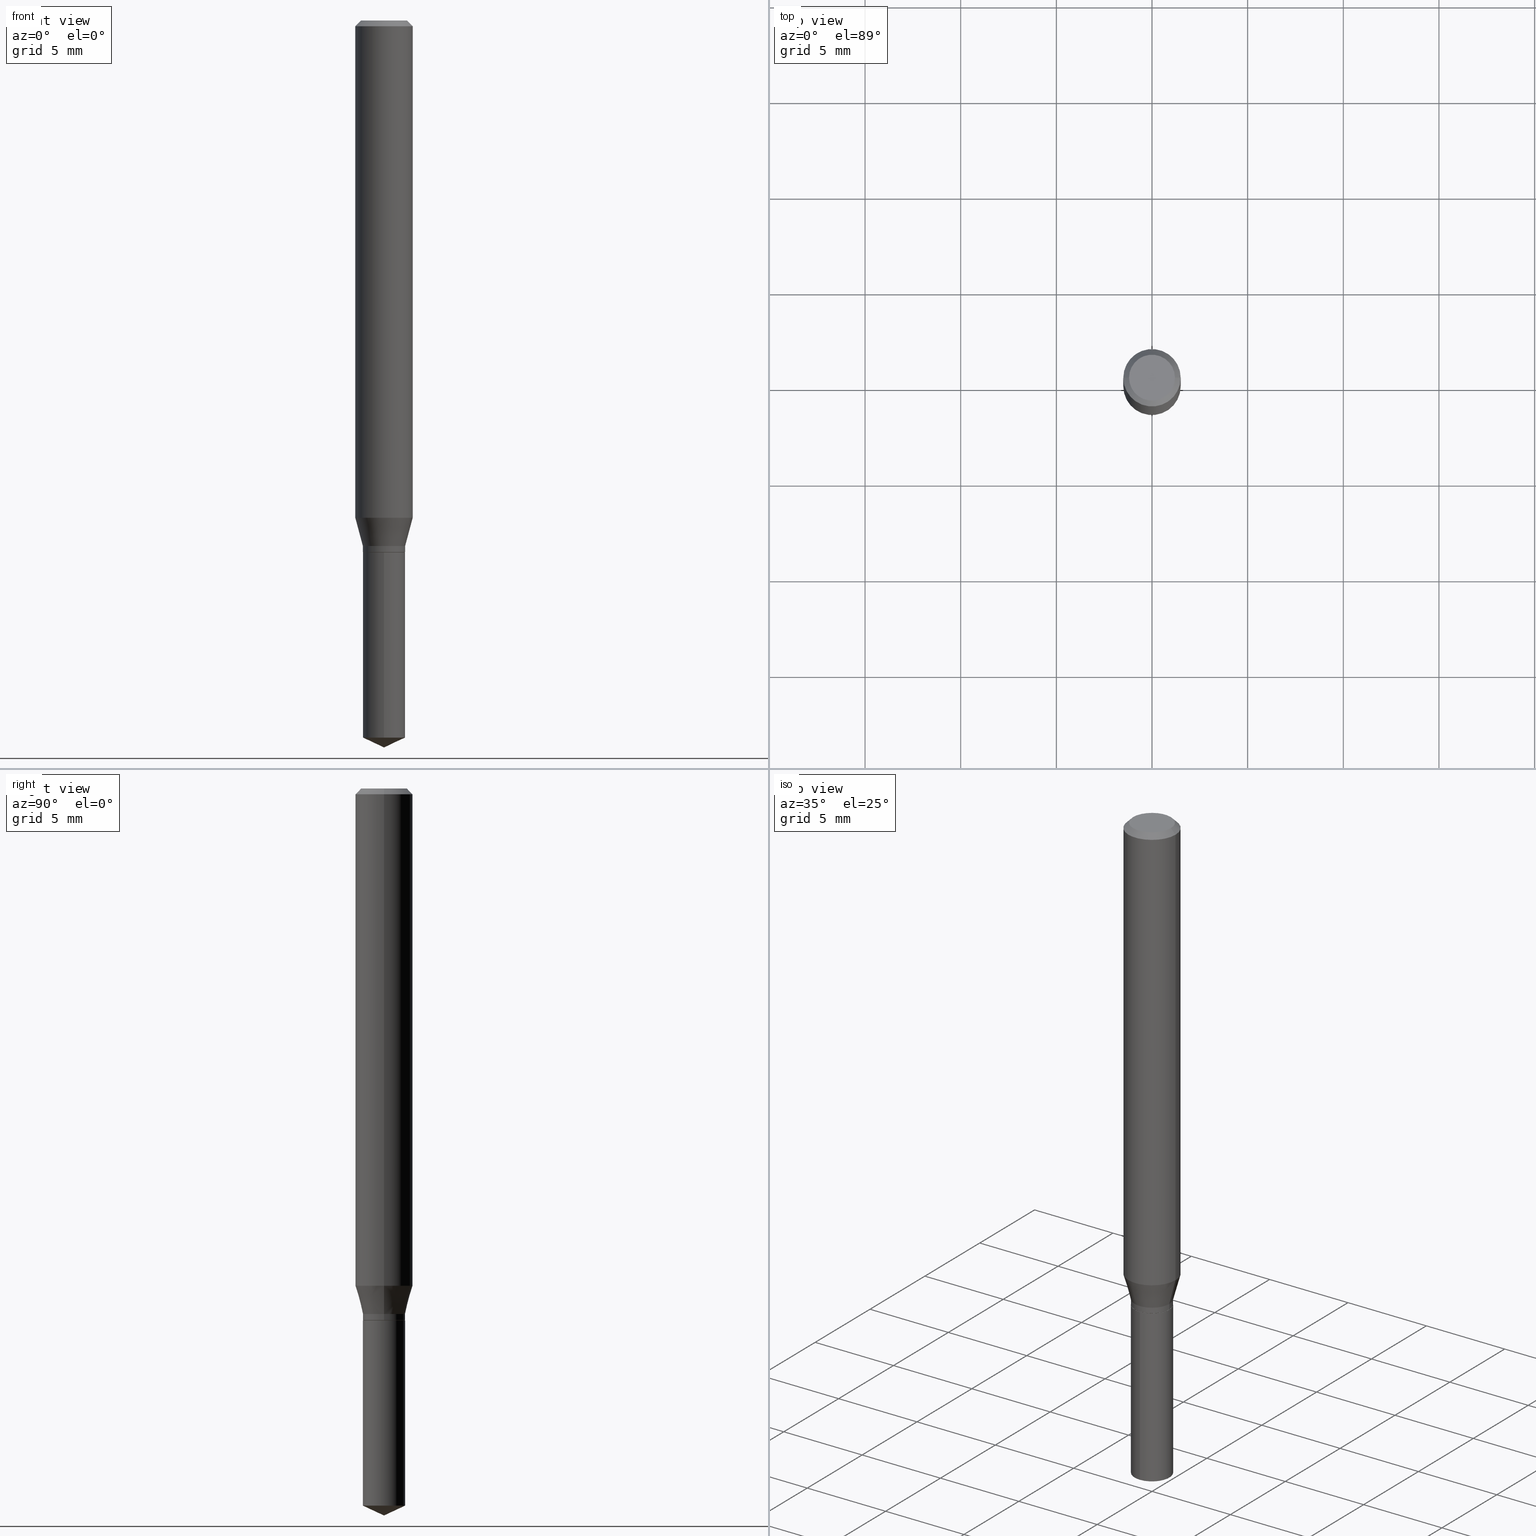
[diagram: canonical four-view strip — front | top / right | iso, engineering-drawing reading convention]
A machine part, canonical four-view strip (front | top / right | iso — engineering-drawing reading convention). The complete STEP part file that produces these views, byte-faithful:
ISO-10303-21;
HEADER;
FILE_DESCRIPTION (( 'STEP AP203' ),
    '1' );
FILE_NAME ('07626.STEP',
    '2024-04-23T23:59:13',
    ( '' ),
    ( '' ),
    'SwSTEP 2.0',
    'SolidWorks 2023',
    '' );
FILE_SCHEMA (( 'CONFIG_CONTROL_DESIGN' ));
ENDSEC;

DATA;
#1 = DIRECTION ( 'NONE',  ( 1.000000000000000000, -6.982962677686266711E-15, 0.000000000000000000 ) ) ;
#2 = AXIS2_PLACEMENT_3D ( 'NONE', #38, #453, #109 ) ;
#3 = CYLINDRICAL_SURFACE ( 'NONE', #2, 0.05905000000000006771 ) ;
#4 = CARTESIAN_POINT ( 'NONE',  ( 3.090860900556795513E-16, 0.04349999999999483447, -1.475815616870258085 ) ) ;
#5 = ORIENTED_EDGE ( 'NONE', *, *, #243, .F. ) ;
#6 = APPROVAL_PERSON_ORGANIZATION ( #365, #454, #169 ) ;
#7 = ADVANCED_FACE ( 'NONE', ( #437 ), #19, .T. ) ;
#8 = DIRECTION ( 'NONE',  ( -6.982962677686265133E-15, -1.000000000000000000, 3.140055165131337128E-15 ) ) ;
#9 = VERTEX_POINT ( 'NONE', #398 ) ;
#10 = ORIENTED_EDGE ( 'NONE', *, *, #367, .T. ) ;
#11 = ADVANCED_BREP_SHAPE_REPRESENTATION ( '07626', ( #411, #83, #37 ), #13 ) ;
#12 = ORIENTED_EDGE ( 'NONE', *, *, #367, .F. ) ;
#13 =( GEOMETRIC_REPRESENTATION_CONTEXT ( 3 ) GLOBAL_UNCERTAINTY_ASSIGNED_CONTEXT ( ( #422 ) ) GLOBAL_UNIT_ASSIGNED_CONTEXT ( ( #66, #96, #173 ) ) REPRESENTATION_CONTEXT ( 'NONE', 'WORKASPACE' ) );
#14 = ORIENTED_EDGE ( 'NONE', *, *, #182, .T. ) ;
#15 = FACE_OUTER_BOUND ( 'NONE', #429, .T. ) ;
#16 = VECTOR ( 'NONE', #202, 39.37007874015748143 ) ;
#17 = DIRECTION ( 'NONE',  ( -2.445468806185136597E-29, 3.491481338843145583E-15, 1.000000000000000000 ) ) ;
#18 = CARTESIAN_POINT ( 'NONE',  ( 2.676565608369631794E-29, -3.821426325363822773E-15, -1.094499999999999806 ) ) ;
#19 = CYLINDRICAL_SURFACE ( 'NONE', #284, 0.04349999999999996231 ) ;
#20 = LINE ( 'NONE', #395, #265 ) ;
#21 = CIRCLE ( 'NONE', #119, 0.04349999999999999700 ) ;
#22 = EDGE_CURVE ( 'NONE', #388, #424, #294, .T. ) ;
#23 = DIRECTION ( 'NONE',  ( -2.445468806185136877E-29, 3.491481338843145188E-15, 1.000000000000000000 ) ) ;
#24 = APPROVAL_STATUS ( 'not_yet_approved' ) ;
#25 = CARTESIAN_POINT ( 'NONE',  ( 2.502611121905334530E-29, -3.573065421408723679E-15, -1.023366609942303329 ) ) ;
#26 = CARTESIAN_POINT ( 'NONE',  ( 0.04349999999999996925, -4.079446796304329678E-15, -1.081399999999999917 ) ) ;
#27 = CC_DESIGN_PERSON_AND_ORGANIZATION_ASSIGNMENT ( #449, #176, ( #289 ) ) ;
#28 = COORDINATED_UNIVERSAL_TIME_OFFSET ( 5, 0, .BEHIND. ) ;
#29 = CIRCLE ( 'NONE', #347, 0.04349999999999996231 ) ;
#30 = FACE_OUTER_BOUND ( 'NONE', #116, .T. ) ;
#31 = PERSON_AND_ORGANIZATION ( #352, #315 ) ;
#32 = CARTESIAN_POINT ( 'NONE',  ( 0.05904999999999999832, -4.535783407291118600E-16, -0.01181000000000007565 ) ) ;
#33 = ORIENTED_EDGE ( 'NONE', *, *, #360, .F. ) ;
#34 = EDGE_CURVE ( 'NONE', #9, #389, #138, .T. ) ;
#35 = DIRECTION ( 'NONE',  ( -2.445458899330790108E-29, 3.491495526022433205E-15, 1.000000000000000000 ) ) ;
#36 = DIRECTION ( 'NONE',  ( 1.000000000000000000, -6.982962677686266711E-15, 0.000000000000000000 ) ) ;
#37 = AXIS2_PLACEMENT_3D ( 'NONE', #297, #133, #171 ) ;
#38 = CARTESIAN_POINT ( 'NONE',  ( 0.000000000000000000, 0.000000000000000000, 0.000000000000000000 ) ) ;
#39 = DIRECTION ( 'NONE',  ( -2.445468806185136597E-29, 3.491481338843145583E-15, 1.000000000000000000 ) ) ;
#40 = ORIENTED_EDGE ( 'NONE', *, *, #447, .F. ) ;
#41 = EDGE_CURVE ( 'NONE', #389, #374, #129, .T. ) ;
#42 = CYLINDRICAL_SURFACE ( 'NONE', #341, 0.04349999999999996231 ) ;
#43 = ORIENTED_EDGE ( 'NONE', *, *, #484, .T. ) ;
#44 = CIRCLE ( 'NONE', #195, 0.05904999999999999832 ) ;
#45 = ORIENTED_EDGE ( 'NONE', *, *, #125, .F. ) ;
#46 = EDGE_CURVE ( 'NONE', #424, #388, #198, .T. ) ;
#47 = ORIENTED_EDGE ( 'NONE', *, *, #394, .T. ) ;
#48 = VERTEX_POINT ( 'NONE', #197 ) ;
#49 = LOCAL_TIME ( 19, 59, 13.00000000000000000, #137 ) ;
#50 = VERTEX_POINT ( 'NONE', #361 ) ;
#51 = CARTESIAN_POINT ( 'NONE',  ( -0.05904999999999999832, -1.387574422543890422E-15, -0.01181000000000007565 ) ) ;
#52 = AXIS2_PLACEMENT_3D ( 'NONE', #25, #136, #292 ) ;
#53 = LINE ( 'NONE', #26, #382 ) ;
#54 = DIRECTION ( 'NONE',  ( -6.328713451373382789E-15, -0.9063077870366504918, 0.4226182617406981090 ) ) ;
#55 = DIRECTION ( 'NONE',  ( -2.445458899330790108E-29, 3.491495526022433205E-15, 1.000000000000000000 ) ) ;
#56 = DATE_AND_TIME ( #399, #213 ) ;
#57 = CONICAL_SURFACE ( 'NONE', #273, 84.42940631927504569, 1.134464013796319115 ) ;
#58 = DIRECTION ( 'NONE',  ( -1.000000000000000000, 6.982962677686266711E-15, 0.000000000000000000 ) ) ;
#59 = DIRECTION ( 'NONE',  ( 0.2588190451025209615, 1.565188264969624926E-15, 0.9659258262890682012 ) ) ;
#60 = ADVANCED_FACE ( 'NONE', ( #99 ), #343, .T. ) ;
#61 = PERSON_AND_ORGANIZATION ( #352, #315 ) ;
#62 = PRODUCT ( '07626', '07626', '', ( #412 ) ) ;
#63 = DIRECTION ( 'NONE',  ( 1.000000000000000000, -6.982962677686270655E-15, 0.000000000000000000 ) ) ;
#64 = DIRECTION ( 'NONE',  ( 2.445458899330789267E-29, -3.491495526022433599E-15, -1.000000000000000000 ) ) ;
#65 = ORIENTED_EDGE ( 'NONE', *, *, #351, .F. ) ;
#66 =( CONVERSION_BASED_UNIT ( 'INCH', #444 ) LENGTH_UNIT ( ) NAMED_UNIT ( #241 ) );
#67 = CARTESIAN_POINT ( 'NONE',  ( 2.676565608369631794E-29, -3.821426325363822773E-15, -1.094499999999999806 ) ) ;
#68 = AXIS2_PLACEMENT_3D ( 'NONE', #67, #334, #1 ) ;
#69 = ORIENTED_EDGE ( 'NONE', *, *, #351, .T. ) ;
#70 = EDGE_CURVE ( 'NONE', #230, #389, #95, .T. ) ;
#71 = DIRECTION ( 'NONE',  ( -2.445468806185136597E-29, 3.491481338843145583E-15, 1.000000000000000000 ) ) ;
#72 = VERTEX_POINT ( 'NONE', #93 ) ;
#73 = CARTESIAN_POINT ( 'NONE',  ( 0.000000000000000000, 0.000000000000000000, 0.000000000000000000 ) ) ;
#74 = CONICAL_SURFACE ( 'NONE', #281, 0.04299999999999998962, 0.7853981633973801113 ) ;
#75 = DIRECTION ( 'NONE',  ( 0.7071067811865452413, -7.319954787623248157E-15, -0.7071067811865497932 ) ) ;
#76 = EDGE_CURVE ( 'NONE', #432, #388, #53, .T. ) ;
#77 = DIRECTION ( 'NONE',  ( -2.445458899330790108E-29, 3.491495526022433205E-15, 1.000000000000000000 ) ) ;
#78 = EDGE_LOOP ( 'NONE', ( #65, #84, #488, #466 ) ) ;
#79 = EDGE_LOOP ( 'NONE', ( #393, #299, #451 ) ) ;
#80 = AXIS2_PLACEMENT_3D ( 'NONE', #307, #149, #348 ) ;
#81 = EDGE_CURVE ( 'NONE', #50, #461, #163, .T. ) ;
#82 = EDGE_LOOP ( 'NONE', ( #338, #231, #476, #278 ) ) ;
#83 = MANIFOLD_SOLID_BREP ( 'Body-Move/Copy2[2]', #477 ) ;
#84 = ORIENTED_EDGE ( 'NONE', *, *, #468, .F. ) ;
#85 = FACE_OUTER_BOUND ( 'NONE', #218, .T. ) ;
#86 = CARTESIAN_POINT ( 'NONE',  ( 2.644529967008606337E-29, -3.775687919824977013E-15, -1.081399999999999917 ) ) ;
#87 = AXIS2_PLACEMENT_3D ( 'NONE', #460, #267, #8 ) ;
#88 = FACE_OUTER_BOUND ( 'NONE', #448, .T. ) ;
#89 = CARTESIAN_POINT ( 'NONE',  ( -9.261924752013118283E-28, 1.322368428517963298E-13, 37.87397874015748300 ) ) ;
#90 = APPROVAL ( #287, 'UNSPECIFIED' ) ;
#91 = CARTESIAN_POINT ( 'NONE',  ( 2.675342873966538993E-29, -3.819680584694400481E-15, -1.093999999999999861 ) ) ;
#92 = AXIS2_PLACEMENT_3D ( 'NONE', #331, #472, #134 ) ;
#93 = CARTESIAN_POINT ( 'NONE',  ( 0.04724000000000000421, -3.852183633974369345E-16, -3.380025165621689721E-19 ) ) ;
#94 = PERSON_AND_ORGANIZATION_ROLE ( 'classification_officer' ) ;
#95 = LINE ( 'NONE', #235, #114 ) ;
#96 =( NAMED_UNIT ( * ) PLANE_ANGLE_UNIT ( ) SI_UNIT ( $, .RADIAN. ) );
#97 = APPROVAL_PERSON_ORGANIZATION ( #369, #90, #166 ) ;
#98 = EDGE_CURVE ( 'NONE', #374, #432, #261, .T. ) ;
#99 = FACE_OUTER_BOUND ( 'NONE', #259, .T. ) ;
#100 = AXIS2_PLACEMENT_3D ( 'NONE', #89, #55, #238 ) ;
#101 = DIRECTION ( 'NONE',  ( -2.445458899330790108E-29, 3.491495526022433599E-15, 1.000000000000000000 ) ) ;
#102 = FACE_OUTER_BOUND ( 'NONE', #354, .T. ) ;
#103 = VECTOR ( 'NONE', #356, 39.37007874015748854 ) ;
#104 = DIRECTION ( 'NONE',  ( -1.000000000000000000, 6.982962677686265922E-15, -4.876176775795935793E-29 ) ) ;
#105 = ORIENTED_EDGE ( 'NONE', *, *, #381, .T. ) ;
#106 = ADVANCED_FACE ( 'NONE', ( #323 ), #160, .T. ) ;
#107 = DIRECTION ( 'NONE',  ( -2.445458899330790108E-29, 3.491495526022433599E-15, 1.000000000000000000 ) ) ;
#108 = ORIENTED_EDGE ( 'NONE', *, *, #46, .F. ) ;
#109 = DIRECTION ( 'NONE',  ( 1.000000000000000000, -6.982962677686266711E-15, 4.876176775795936353E-29 ) ) ;
#110 = ADVANCED_FACE ( 'NONE', ( #172 ), #184, .T. ) ;
#111 = DIRECTION ( 'NONE',  ( -2.445468806185136597E-29, 3.491481338843145583E-15, 1.000000000000000000 ) ) ;
#112 = CARTESIAN_POINT ( 'NONE',  ( -0.04349999999999996231, -3.488598162204045286E-15, -1.093999999999999861 ) ) ;
#113 = EDGE_LOOP ( 'NONE', ( #390, #69, #425, #272 ) ) ;
#114 = VECTOR ( 'NONE', #396, 39.37007874015748143 ) ;
#115 = CARTESIAN_POINT ( 'NONE',  ( 3.658672935554494692E-29, -5.223595400746700193E-15, -1.496099999999999985 ) ) ;
#116 = EDGE_LOOP ( 'NONE', ( #5, #368 ) ) ;
#117 = EDGE_CURVE ( 'NONE', #424, #461, #326, .T. ) ;
#118 = ORIENTED_EDGE ( 'NONE', *, *, #243, .T. ) ;
#119 = AXIS2_PLACEMENT_3D ( 'NONE', #18, #77, #196 ) ;
#120 = CC_DESIGN_SECURITY_CLASSIFICATION ( #371, ( #289 ) ) ;
#121 = ORIENTED_EDGE ( 'NONE', *, *, #168, .T. ) ;
#122 = VECTOR ( 'NONE', #107, 39.37007874015748143 ) ;
#123 = ORIENTED_EDGE ( 'NONE', *, *, #232, .T. ) ;
#124 = CARTESIAN_POINT ( 'NONE',  ( -0.05905000000000013016, -3.153489935942384186E-15, -1.023366609942303329 ) ) ;
#125 = EDGE_CURVE ( 'NONE', #388, #159, #131, .T. ) ;
#126 = DIRECTION ( 'NONE',  ( -2.445468806185136597E-29, 3.491481338843145583E-15, 1.000000000000000000 ) ) ;
#127 = AXIS2_PLACEMENT_3D ( 'NONE', #214, #71, #36 ) ;
#128 = DIRECTION ( 'NONE',  ( -2.445468806185136597E-29, 3.491481338843145583E-15, 1.000000000000000000 ) ) ;
#129 = LINE ( 'NONE', #283, #421 ) ;
#130 = COORDINATED_UNIVERSAL_TIME_OFFSET ( 5, 0, .BEHIND. ) ;
#131 = LINE ( 'NONE', #286, #311 ) ;
#132 = CC_DESIGN_PERSON_AND_ORGANIZATION_ASSIGNMENT ( #31, #245, ( #289 ) ) ;
#133 = DIRECTION ( 'NONE',  ( 0.000000000000000000, 0.000000000000000000, 1.000000000000000000 ) ) ;
#134 = DIRECTION ( 'NONE',  ( 1.000000000000000000, -6.982962677686260400E-15, 0.000000000000000000 ) ) ;
#135 = DATE_AND_TIME ( #480, #158 ) ;
#136 = DIRECTION ( 'NONE',  ( -2.445468806185136597E-29, 3.491481338843145583E-15, 1.000000000000000000 ) ) ;
#137 = COORDINATED_UNIVERSAL_TIME_OFFSET ( 5, 0, .BEHIND. ) ;
#138 = CIRCLE ( 'NONE', #92, 0.04349999999999996231 ) ;
#139 = FACE_OUTER_BOUND ( 'NONE', #79, .T. ) ;
#140 = DIRECTION ( 'NONE',  ( -6.982962677686267499E-15, -1.000000000000000000, 3.520397390770424288E-15 ) ) ;
#141 = EDGE_CURVE ( 'NONE', #374, #424, #366, .T. ) ;
#142 = CIRCLE ( 'NONE', #442, 0.05904999999999999832 ) ;
#143 = DIRECTION ( 'NONE',  ( -6.982962677686265133E-15, -1.000000000000000000, 6.280110330262674256E-15 ) ) ;
#144 = ORIENTED_EDGE ( 'NONE', *, *, #490, .T. ) ;
#145 = LOCAL_TIME ( 19, 59, 13.00000000000000000, #327 ) ;
#146 = FACE_OUTER_BOUND ( 'NONE', #82, .T. ) ;
#147 = ADVANCED_FACE ( 'NONE', ( #443 ), #247, .F. ) ;
#148 = DIRECTION ( 'NONE',  ( -1.000000000000000000, 6.982962677686266711E-15, 0.000000000000000000 ) ) ;
#149 = DIRECTION ( 'NONE',  ( -2.445468806185136597E-29, 3.491481338843145583E-15, 1.000000000000000000 ) ) ;
#150 = CONICAL_SURFACE ( 'NONE', #427, 0.05904999999999999832, 0.7853981633974450594 ) ;
#151 = ORIENTED_EDGE ( 'NONE', *, *, #360, .T. ) ;
#152 = DIRECTION ( 'NONE',  ( -2.445468806185136597E-29, 3.491481338843145583E-15, 1.000000000000000000 ) ) ;
#153 = ORIENTED_EDGE ( 'NONE', *, *, #228, .F. ) ;
#154 = AXIS2_PLACEMENT_3D ( 'NONE', #482, #126, #288 ) ;
#155 = ORIENTED_EDGE ( 'NONE', *, *, #232, .F. ) ;
#156 = ADVANCED_FACE ( 'NONE', ( #342 ), #350, .T. ) ;
#157 = EDGE_LOOP ( 'NONE', ( #123, #363, #190, #414 ) ) ;
#158 = LOCAL_TIME ( 19, 59, 13.00000000000000000, #130 ) ;
#159 = VERTEX_POINT ( 'NONE', #32 ) ;
#160 = CONICAL_SURFACE ( 'NONE', #100, 84.42940631927504569, 1.134464013796319115 ) ;
#161 = DIRECTION ( 'NONE',  ( -2.445458899330790108E-29, 3.491495526022433205E-15, 1.000000000000000000 ) ) ;
#162 = EDGE_CURVE ( 'NONE', #193, #386, #376, .T. ) ;
#163 = LINE ( 'NONE', #280, #268 ) ;
#164 = CARTESIAN_POINT ( 'NONE',  ( 2.676565608369631794E-29, -3.821426325363822773E-15, -1.094499999999999806 ) ) ;
#165 = DIRECTION ( 'NONE',  ( 1.000000000000000000, -6.982962677686270655E-15, 0.000000000000000000 ) ) ;
#166 = APPROVAL_ROLE ( '' ) ;
#167 = ORIENTED_EDGE ( 'NONE', *, *, #41, .F. ) ;
#168 = EDGE_CURVE ( 'NONE', #230, #48, #462, .T. ) ;
#169 = APPROVAL_ROLE ( '' ) ;
#170 = CARTESIAN_POINT ( 'NONE',  ( -0.04349999999999996925, -3.466601829769333947E-15, -1.081399999999999917 ) ) ;
#171 = DIRECTION ( 'NONE',  ( 1.000000000000000000, 0.000000000000000000, 0.000000000000000000 ) ) ;
#172 = FACE_OUTER_BOUND ( 'NONE', #78, .T. ) ;
#173 =( NAMED_UNIT ( * ) SI_UNIT ( $, .STERADIAN. ) SOLID_ANGLE_UNIT ( ) );
#174 = AXIS2_PLACEMENT_3D ( 'NONE', #319, #282, #436 ) ;
#175 = DIRECTION ( 'NONE',  ( 1.000000000000000000, -6.982962677686270655E-15, 0.000000000000000000 ) ) ;
#176 = PERSON_AND_ORGANIZATION_ROLE ( 'design_supplier' ) ;
#177 = CC_DESIGN_DATE_AND_TIME_ASSIGNMENT ( #56, #293, ( #371 ) ) ;
#178 = AXIS2_PLACEMENT_3D ( 'NONE', #179, #413, #175 ) ;
#179 = CARTESIAN_POINT ( 'NONE',  ( 2.644529967008606337E-29, -3.775687919824977013E-15, -1.081399999999999917 ) ) ;
#180 = CYLINDRICAL_SURFACE ( 'NONE', #401, 0.05905000000000006771 ) ;
#181 = DIRECTION ( 'NONE',  ( -2.445458899330790108E-29, 3.491495526022433205E-15, 1.000000000000000000 ) ) ;
#182 = EDGE_CURVE ( 'NONE', #432, #374, #469, .T. ) ;
#183 = CARTESIAN_POINT ( 'NONE',  ( 2.676565608369631794E-29, -3.821426325363822773E-15, -1.094499999999999806 ) ) ;
#184 = CONICAL_SURFACE ( 'NONE', #336, 0.05904999999999999832, 0.7853981633974450594 ) ;
#185 = DIRECTION ( 'NONE',  ( 1.000000000000000000, -6.982962677686266711E-15, 0.000000000000000000 ) ) ;
#186 = ORIENTED_EDGE ( 'NONE', *, *, #34, .F. ) ;
#187 = CARTESIAN_POINT ( 'NONE',  ( 0.04349999999999996925, -4.079446796304329678E-15, -1.081399999999999917 ) ) ;
#188 = ORIENTED_EDGE ( 'NONE', *, *, #34, .T. ) ;
#189 = ADVANCED_FACE ( 'NONE', ( #344 ), #3, .T. ) ;
#190 = ORIENTED_EDGE ( 'NONE', *, *, #484, .F. ) ;
#191 = AXIS2_PLACEMENT_3D ( 'NONE', #418, #380, #63 ) ;
#192 = PRODUCT_RELATED_PRODUCT_CATEGORY ( 'detail', '', ( #62 ) ) ;
#193 = VERTEX_POINT ( 'NONE', #485 ) ;
#194 = ORIENTED_EDGE ( 'NONE', *, *, #141, .T. ) ;
#195 = AXIS2_PLACEMENT_3D ( 'NONE', #226, #152, #237 ) ;
#196 = DIRECTION ( 'NONE',  ( -6.982962677686265133E-15, -1.000000000000000000, 3.140055165131337128E-15 ) ) ;
#197 = CARTESIAN_POINT ( 'NONE',  ( 0.04299999999999998962, -4.121693720504331642E-15, -1.094499999999999806 ) ) ;
#198 = CIRCLE ( 'NONE', #154, 0.05905000000000013016 ) ;
#199 = CARTESIAN_POINT ( 'NONE',  ( 0.05905000000000013016, -3.985409367526099388E-15, -1.023366609942303329 ) ) ;
#200 = CARTESIAN_POINT ( 'NONE',  ( 2.888098660104664642E-31, -4.123439461173780879E-17, -0.01181000000000007565 ) ) ;
#201 = DIRECTION ( 'NONE',  ( 0.7071067811864992780, -2.468850131081751401E-15, 0.7071067811865957564 ) ) ;
#202 = DIRECTION ( 'NONE',  ( -2.445468806185136877E-29, 3.491481338843145188E-15, 1.000000000000000000 ) ) ;
#203 = CIRCLE ( 'NONE', #452, 0.04349999999999999700 ) ;
#204 = APPROVAL_DATE_TIME ( #209, #219 ) ;
#205 = DESIGN_CONTEXT ( 'detailed design', #255, 'design' ) ;
#206 = CARTESIAN_POINT ( 'NONE',  ( -0.05905000000000006771, 4.195754854663396409E-16, -2.904631170795525045E-30 ) ) ;
#207 = VECTOR ( 'NONE', #101, 39.37007874015748143 ) ;
#208 = CARTESIAN_POINT ( 'NONE',  ( 2.676565608369631794E-29, -3.821426325363822773E-15, -1.094499999999999806 ) ) ;
#209 = DATE_AND_TIME ( #486, #49 ) ;
#210 = DIRECTION ( 'NONE',  ( -2.445468806185136597E-29, 3.491481338843145583E-15, 1.000000000000000000 ) ) ;
#211 = CC_DESIGN_DATE_AND_TIME_ASSIGNMENT ( #135, #285, ( #431 ) ) ;
#212 = PERSON_AND_ORGANIZATION ( #352, #315 ) ;
#213 = LOCAL_TIME ( 19, 59, 13.00000000000000000, #28 ) ;
#214 = CARTESIAN_POINT ( 'NONE',  ( 2.676565608369631794E-29, -3.821426325363822773E-15, -1.094499999999999806 ) ) ;
#215 = VERTEX_POINT ( 'NONE', #339 ) ;
#216 = VECTOR ( 'NONE', #328, 39.37007874015748143 ) ;
#217 = CARTESIAN_POINT ( 'NONE',  ( 2.888098660104664642E-31, -4.123439461173780879E-17, -0.01181000000000007565 ) ) ;
#218 = EDGE_LOOP ( 'NONE', ( #118, #224, #186, #12 ) ) ;
#219 = APPROVAL ( #405, 'UNSPECIFIED' ) ;
#220 = DIRECTION ( 'NONE',  ( -2.445468806185136597E-29, 3.491481338843145583E-15, 1.000000000000000000 ) ) ;
#221 = AXIS2_PLACEMENT_3D ( 'NONE', #310, #234, #391 ) ;
#222 = CARTESIAN_POINT ( 'NONE',  ( -3.037588764793257451E-16, -0.04350000000000382033, -1.094499999999999806 ) ) ;
#223 = LINE ( 'NONE', #420, #364 ) ;
#224 = ORIENTED_EDGE ( 'NONE', *, *, #70, .T. ) ;
#225 = SHAPE_DEFINITION_REPRESENTATION ( #252, #11 ) ;
#226 = CARTESIAN_POINT ( 'NONE',  ( 2.888098660104664642E-31, -4.123439461173780879E-17, -0.01181000000000007565 ) ) ;
#227 = EDGE_LOOP ( 'NONE', ( #153, #269, #353, #33 ) ) ;
#228 = EDGE_CURVE ( 'NONE', #467, #215, #377, .T. ) ;
#229 = VECTOR ( 'NONE', #75, 39.37007874015748143 ) ;
#230 = VERTEX_POINT ( 'NONE', #262 ) ;
#231 = ORIENTED_EDGE ( 'NONE', *, *, #46, .T. ) ;
#232 = EDGE_CURVE ( 'NONE', #193, #467, #404, .T. ) ;
#233 = ORIENTED_EDGE ( 'NONE', *, *, #306, .F. ) ;
#234 = DIRECTION ( 'NONE',  ( -2.445468806185136597E-29, 3.491481338843145583E-15, 1.000000000000000000 ) ) ;
#235 = CARTESIAN_POINT ( 'NONE',  ( -0.04299999999999998962, -3.515892948986979422E-15, -1.094499999999999806 ) ) ;
#236 = CIRCLE ( 'NONE', #80, 0.04724000000000000421 ) ;
#237 = DIRECTION ( 'NONE',  ( 1.000000000000000000, -6.982962677686266711E-15, 0.000000000000000000 ) ) ;
#238 = DIRECTION ( 'NONE',  ( -6.982962677686267499E-15, -1.000000000000000000, 3.520397390770424288E-15 ) ) ;
#239 = AXIS2_PLACEMENT_3D ( 'NONE', #208, #64, #450 ) ;
#240 = DIRECTION ( 'NONE',  ( -2.445468806185136877E-29, 3.491481338843145188E-15, 1.000000000000000000 ) ) ;
#241 = DIMENSIONAL_EXPONENTS ( 1.000000000000000000, 0.000000000000000000, 0.000000000000000000, 0.000000000000000000, 0.000000000000000000, 0.000000000000000000, 0.000000000000000000 ) ;
#242 = DIRECTION ( 'NONE',  ( 1.000000000000000000, -6.982962677686265922E-15, 4.876176775795935793E-29 ) ) ;
#243 = EDGE_CURVE ( 'NONE', #48, #230, #409, .T. ) ;
#244 = DIRECTION ( 'NONE',  ( -2.445468806185136597E-29, 3.491481338843145583E-15, 1.000000000000000000 ) ) ;
#245 = PERSON_AND_ORGANIZATION_ROLE ( 'creator' ) ;
#246 = APPLICATION_CONTEXT ( 'configuration controlled 3d designs of mechanical parts and assemblies' ) ;
#247 = PLANE ( 'NONE',  #239 ) ;
#248 = APPLICATION_PROTOCOL_DEFINITION ( 'international standard', 'config_control_design', 1994, #246 ) ;
#249 = AXIS2_PLACEMENT_3D ( 'NONE', #489, #181, #415 ) ;
#250 = CARTESIAN_POINT ( 'NONE',  ( 2.888098660104664642E-31, -4.123439461173780879E-17, -0.01181000000000007565 ) ) ;
#251 = ADVANCED_FACE ( 'NONE', ( #146 ), #180, .T. ) ;
#252 = PRODUCT_DEFINITION_SHAPE ( 'NONE', 'NONE',  #431 ) ;
#253 = COORDINATED_UNIVERSAL_TIME_OFFSET ( 5, 0, .BEHIND. ) ;
#254 = DIRECTION ( 'NONE',  ( -2.438088387897960049E-29, 3.491481338843145188E-15, 1.000000000000000000 ) ) ;
#255 = APPLICATION_CONTEXT ( 'configuration controlled 3d designs of mechanical parts and assemblies' ) ;
#256 = EDGE_LOOP ( 'NONE', ( #312, #105, #155 ) ) ;
#257 = AXIS2_PLACEMENT_3D ( 'NONE', #487, #298, #104 ) ;
#258 = CARTESIAN_POINT ( 'NONE',  ( 3.609057277098813731E-29, -5.152788095668811467E-15, -1.475815616870257641 ) ) ;
#259 = EDGE_LOOP ( 'NONE', ( #296, #274, #349, #108 ) ) ;
#260 = ADVANCED_FACE ( 'NONE', ( #30 ), #295, .F. ) ;
#261 = CIRCLE ( 'NONE', #277, 0.04349999999999996925 ) ;
#262 = CARTESIAN_POINT ( 'NONE',  ( -0.04299999999999998962, -3.513243721812868615E-15, -1.094499999999999806 ) ) ;
#263 = APPROVAL_DATE_TIME ( #309, #454 ) ;
#264 = CARTESIAN_POINT ( 'NONE',  ( 3.090860900556702329E-16, 0.04349999999999616673, -1.094500000000000028 ) ) ;
#265 = VECTOR ( 'NONE', #201, 39.37007874015748143 ) ;
#266 = CARTESIAN_POINT ( 'NONE',  ( -0.04349999999999996925, -3.488598162204045286E-15, -1.081399999999999917 ) ) ;
#267 = DIRECTION ( 'NONE',  ( -2.445458899330790108E-29, 3.491495526022433205E-15, 1.000000000000000000 ) ) ;
#268 = VECTOR ( 'NONE', #402, 39.37007874015748143 ) ;
#269 = ORIENTED_EDGE ( 'NONE', *, *, #340, .T. ) ;
#270 = CC_DESIGN_PERSON_AND_ORGANIZATION_ASSIGNMENT ( #441, #94, ( #371 ) ) ;
#271 = CARTESIAN_POINT ( 'NONE',  ( 2.676565608369631794E-29, -3.821426325363822773E-15, -1.094499999999999806 ) ) ;
#272 = ORIENTED_EDGE ( 'NONE', *, *, #81, .F. ) ;
#273 = AXIS2_PLACEMENT_3D ( 'NONE', #373, #446, #140 ) ;
#274 = ORIENTED_EDGE ( 'NONE', *, *, #98, .T. ) ;
#275 = ADVANCED_FACE ( 'NONE', ( #406 ), #150, .T. ) ;
#276 = VERTEX_POINT ( 'NONE', #445 ) ;
#277 = AXIS2_PLACEMENT_3D ( 'NONE', #403, #244, #435 ) ;
#278 = ORIENTED_EDGE ( 'NONE', *, *, #438, .F. ) ;
#279 = CARTESIAN_POINT ( 'NONE',  ( -3.037588764793257451E-16, -0.04350000000000382033, -1.094499999999999806 ) ) ;
#280 = CARTESIAN_POINT ( 'NONE',  ( -0.05904999999999999832, 3.711095515056362547E-16, -0.01181000000000007565 ) ) ;
#281 = AXIS2_PLACEMENT_3D ( 'NONE', #271, #39, #463 ) ;
#282 = DIRECTION ( 'NONE',  ( -2.445458899330790108E-29, 3.491495526022433205E-15, 1.000000000000000000 ) ) ;
#283 = CARTESIAN_POINT ( 'NONE',  ( -0.04349999999999996231, 3.090860900556433130E-16, -2.139736764260881837E-30 ) ) ;
#284 = AXIS2_PLACEMENT_3D ( 'NONE', #357, #320, #242 ) ;
#285 = DATE_TIME_ROLE ( 'creation_date' ) ;
#286 = CARTESIAN_POINT ( 'NONE',  ( 0.05905000000000006771, -4.123439461173745257E-16, 2.879382386107503723E-30 ) ) ;
#287 = APPROVAL_STATUS ( 'not_yet_approved' ) ;
#288 = DIRECTION ( 'NONE',  ( 1.000000000000000000, -6.982962677686265133E-15, 0.000000000000000000 ) ) ;
#289 = PRODUCT_DEFINITION_FORMATION_WITH_SPECIFIED_SOURCE ( 'ANY', '', #62, .NOT_KNOWN. ) ;
#290 = APPROVAL_ROLE ( '' ) ;
#291 = CC_DESIGN_PERSON_AND_ORGANIZATION_ASSIGNMENT ( #212, #330, ( #62 ) ) ;
#292 = DIRECTION ( 'NONE',  ( 1.000000000000000000, -6.982962677686265133E-15, 0.000000000000000000 ) ) ;
#293 = DATE_TIME_ROLE ( 'classification_date' ) ;
#294 = CIRCLE ( 'NONE', #52, 0.05905000000000013016 ) ;
#295 = PLANE ( 'NONE',  #434 ) ;
#296 = ORIENTED_EDGE ( 'NONE', *, *, #141, .F. ) ;
#297 = CARTESIAN_POINT ( 'NONE',  ( 0.000000000000000000, 0.000000000000000000, 0.000000000000000000 ) ) ;
#298 = DIRECTION ( 'NONE',  ( 2.438088387897960049E-29, -3.491481338843145188E-15, -1.000000000000000000 ) ) ;
#299 = ORIENTED_EDGE ( 'NONE', *, *, #375, .T. ) ;
#300 = CONICAL_SURFACE ( 'NONE', #458, 0.04299999999999998962, 0.7853981633973801113 ) ;
#301 = LINE ( 'NONE', #359, #229 ) ;
#302 = ORIENTED_EDGE ( 'NONE', *, *, #98, .F. ) ;
#303 = DIRECTION ( 'NONE',  ( 1.000000000000000000, -6.982962677686265922E-15, 4.876176775795935793E-29 ) ) ;
#304 = LINE ( 'NONE', #473, #387 ) ;
#305 = CIRCLE ( 'NONE', #87, 0.04349999999999999700 ) ;
#306 = EDGE_CURVE ( 'NONE', #159, #461, #142, .T. ) ;
#307 = CARTESIAN_POINT ( 'NONE',  ( 8.265746106709734507E-48, -1.180129479067563789E-33, -3.380025165646692144E-19 ) ) ;
#308 = EDGE_LOOP ( 'NONE', ( #188, #346, #313, #470 ) ) ;
#309 = DATE_AND_TIME ( #456, #145 ) ;
#310 = CARTESIAN_POINT ( 'NONE',  ( 8.265746106709734507E-48, -1.180129479067563789E-33, -3.380025165646692144E-19 ) ) ;
#311 = VECTOR ( 'NONE', #440, 39.37007874015748143 ) ;
#312 = ORIENTED_EDGE ( 'NONE', *, *, #375, .F. ) ;
#313 = ORIENTED_EDGE ( 'NONE', *, *, #182, .F. ) ;
#314 = ADVANCED_FACE ( 'NONE', ( #139 ), #57, .T. ) ;
#315 = ORGANIZATION ( 'UNSPECIFIED', 'UNSPECIFIED', '' ) ;
#316 = EDGE_LOOP ( 'NONE', ( #43, #151 ) ) ;
#317 = ORIENTED_EDGE ( 'NONE', *, *, #70, .F. ) ;
#318 = AXIS2_PLACEMENT_3D ( 'NONE', #86, #17, #165 ) ;
#319 = CARTESIAN_POINT ( 'NONE',  ( 2.676565608369631794E-29, -3.821426325363822773E-15, -1.094499999999999806 ) ) ;
#320 = DIRECTION ( 'NONE',  ( -2.445468806185136597E-29, 3.491481338843145583E-15, 1.000000000000000000 ) ) ;
#321 = CARTESIAN_POINT ( 'NONE',  ( 2.676565608369631794E-29, -3.821426325363822773E-15, -1.094499999999999806 ) ) ;
#322 = CC_DESIGN_PERSON_AND_ORGANIZATION_ASSIGNMENT ( #483, #475, ( #431 ) ) ;
#323 = FACE_OUTER_BOUND ( 'NONE', #256, .T. ) ;
#324 = CIRCLE ( 'NONE', #221, 0.04724000000000000421 ) ;
#325 = APPROVAL_DATE_TIME ( #335, #90 ) ;
#326 = LINE ( 'NONE', #206, #16 ) ;
#327 = COORDINATED_UNIVERSAL_TIME_OFFSET ( 5, 0, .BEHIND. ) ;
#328 = DIRECTION ( 'NONE',  ( -0.2588190451025209615, 5.211531920934547097E-15, 0.9659258262890682012 ) ) ;
#329 = ADVANCED_FACE ( 'NONE', ( #102 ), #337, .F. ) ;
#330 = PERSON_AND_ORGANIZATION_ROLE ( 'design_owner' ) ;
#331 = CARTESIAN_POINT ( 'NONE',  ( 2.675342873966538993E-29, -3.819680584694400481E-15, -1.093999999999999861 ) ) ;
#332 = AXIS2_PLACEMENT_3D ( 'NONE', #164, #161, #397 ) ;
#333 = APPLICATION_PROTOCOL_DEFINITION ( 'international standard', 'config_control_design', 1994, #255 ) ;
#334 = DIRECTION ( 'NONE',  ( -2.445468806185136597E-29, 3.491481338843145583E-15, 1.000000000000000000 ) ) ;
#335 = DATE_AND_TIME ( #372, #419 ) ;
#336 = AXIS2_PLACEMENT_3D ( 'NONE', #200, #474, #58 ) ;
#337 = PLANE ( 'NONE',  #257 ) ;
#338 = ORIENTED_EDGE ( 'NONE', *, *, #117, .F. ) ;
#339 = CARTESIAN_POINT ( 'NONE',  ( 3.090860900556796499E-16, 0.04349999999999616673, -1.094500000000000028 ) ) ;
#340 = EDGE_CURVE ( 'NONE', #467, #193, #203, .T. ) ;
#341 = AXIS2_PLACEMENT_3D ( 'NONE', #471, #128, #345 ) ;
#342 = FACE_OUTER_BOUND ( 'NONE', #408, .T. ) ;
#343 = CONICAL_SURFACE ( 'NONE', #318, 0.04349999999999996925, 0.2617993877991496299 ) ;
#344 = FACE_OUTER_BOUND ( 'NONE', #464, .T. ) ;
#345 = DIRECTION ( 'NONE',  ( 1.000000000000000000, -6.982962677686265922E-15, 4.876176775795935793E-29 ) ) ;
#346 = ORIENTED_EDGE ( 'NONE', *, *, #41, .T. ) ;
#347 = AXIS2_PLACEMENT_3D ( 'NONE', #91, #433, #383 ) ;
#348 = DIRECTION ( 'NONE',  ( 1.000000000000000000, -6.982962677686266711E-15, 4.876185090822587894E-29 ) ) ;
#349 = ORIENTED_EDGE ( 'NONE', *, *, #76, .T. ) ;
#350 = CONICAL_SURFACE ( 'NONE', #178, 0.04349999999999996925, 0.2617993877991496299 ) ;
#351 = EDGE_CURVE ( 'NONE', #72, #159, #301, .T. ) ;
#352 = PERSON ( 'UNSPECIFIED', 'UNSPECIFIED', 'UNSPECIFIED', ('UNSPECIFIED'), ('UNSPECIFIED'), ('UNSPECIFIED') ) ;
#353 = ORIENTED_EDGE ( 'NONE', *, *, #162, .T. ) ;
#354 = EDGE_LOOP ( 'NONE', ( #384, #144 ) ) ;
#355 = ORIENTED_EDGE ( 'NONE', *, *, #117, .T. ) ;
#356 = DIRECTION ( 'NONE',  ( 6.439704144417038242E-15, 0.9063077870366533784, 0.4226182617406917807 ) ) ;
#357 = CARTESIAN_POINT ( 'NONE',  ( 0.000000000000000000, 0.000000000000000000, 0.000000000000000000 ) ) ;
#358 = CLOSED_SHELL ( 'NONE', ( #417, #106, #314, #410, #147 ) ) ;
#359 = CARTESIAN_POINT ( 'NONE',  ( 0.05904999999999999832, -4.463468013801466955E-16, -0.01181000000000007565 ) ) ;
#360 = EDGE_CURVE ( 'NONE', #215, #386, #21, .T. ) ;
#361 = CARTESIAN_POINT ( 'NONE',  ( -0.04724000000000000421, 3.504923541997677355E-16, -3.380025165670481712E-19 ) ) ;
#362 = CYLINDRICAL_SURFACE ( 'NONE', #174, 0.04349999999999999700 ) ;
#363 = ORIENTED_EDGE ( 'NONE', *, *, #228, .T. ) ;
#364 = VECTOR ( 'NONE', #240, 39.37007874015748143 ) ;
#365 = PERSON_AND_ORGANIZATION ( #352, #315 ) ;
#366 = LINE ( 'NONE', #170, #216 ) ;
#367 = EDGE_CURVE ( 'NONE', #48, #9, #20, .T. ) ;
#368 = ORIENTED_EDGE ( 'NONE', *, *, #168, .F. ) ;
#369 = PERSON_AND_ORGANIZATION ( #352, #315 ) ;
#370 = DIRECTION ( 'NONE',  ( 1.000000000000000000, -6.982962677686266711E-15, 4.876176775795936353E-29 ) ) ;
#371 = SECURITY_CLASSIFICATION ( '', '', #439 ) ;
#372 = CALENDAR_DATE ( 2024, 23, 4 ) ;
#373 = CARTESIAN_POINT ( 'NONE',  ( -9.261924752013118283E-28, 1.322368428517963298E-13, 37.87397874015748300 ) ) ;
#374 = VERTEX_POINT ( 'NONE', #266 ) ;
#375 = EDGE_CURVE ( 'NONE', #276, #193, #304, .T. ) ;
#376 = LINE ( 'NONE', #222, #122 ) ;
#377 = LINE ( 'NONE', #264, #207 ) ;
#378 = ORIENTED_EDGE ( 'NONE', *, *, #22, .T. ) ;
#379 = CC_DESIGN_APPROVAL ( #90, ( #431 ) ) ;
#380 = DIRECTION ( 'NONE',  ( -2.445468806185136597E-29, 3.491481338843145583E-15, 1.000000000000000000 ) ) ;
#381 = EDGE_CURVE ( 'NONE', #276, #467, #385, .T. ) ;
#382 = VECTOR ( 'NONE', #59, 39.37007874015748143 ) ;
#383 = DIRECTION ( 'NONE',  ( 1.000000000000000000, -6.982962677686260400E-15, 0.000000000000000000 ) ) ;
#384 = ORIENTED_EDGE ( 'NONE', *, *, #468, .T. ) ;
#385 = LINE ( 'NONE', #115, #103 ) ;
#386 = VERTEX_POINT ( 'NONE', #279 ) ;
#387 = VECTOR ( 'NONE', #54, 39.37007874015748854 ) ;
#388 = VERTEX_POINT ( 'NONE', #199 ) ;
#389 = VERTEX_POINT ( 'NONE', #112 ) ;
#390 = ORIENTED_EDGE ( 'NONE', *, *, #490, .F. ) ;
#391 = DIRECTION ( 'NONE',  ( 1.000000000000000000, -6.982962677686266711E-15, 4.876185090822587894E-29 ) ) ;
#392 = CC_DESIGN_APPROVAL ( #219, ( #289 ) ) ;
#393 = ORIENTED_EDGE ( 'NONE', *, *, #381, .F. ) ;
#394 = EDGE_CURVE ( 'NONE', #9, #432, #223, .T. ) ;
#395 = CARTESIAN_POINT ( 'NONE',  ( 0.04299999999999998962, -4.121693720504331642E-15, -1.094499999999999806 ) ) ;
#396 = DIRECTION ( 'NONE',  ( -0.7071067811864992780, 7.493145998870180611E-15, 0.7071067811865957564 ) ) ;
#397 = DIRECTION ( 'NONE',  ( -6.982962677686265133E-15, -1.000000000000000000, 3.140055165131337128E-15 ) ) ;
#398 = CARTESIAN_POINT ( 'NONE',  ( 0.04349999999999996231, -4.123439461173753146E-15, -1.093999999999999861 ) ) ;
#399 = CALENDAR_DATE ( 2024, 23, 4 ) ;
#400 = ADVANCED_FACE ( 'NONE', ( #15 ), #42, .T. ) ;
#401 = AXIS2_PLACEMENT_3D ( 'NONE', #73, #220, #370 ) ;
#402 = DIRECTION ( 'NONE',  ( -0.7071067811865452413, 2.468850131082233000E-15, -0.7071067811865497932 ) ) ;
#403 = CARTESIAN_POINT ( 'NONE',  ( 2.644529967008606337E-29, -3.775687919824977013E-15, -1.081399999999999917 ) ) ;
#404 = CIRCLE ( 'NONE', #249, 0.04349999999999999700 ) ;
#405 = APPROVAL_STATUS ( 'not_yet_approved' ) ;
#406 = FACE_OUTER_BOUND ( 'NONE', #113, .T. ) ;
#407 = DIRECTION ( 'NONE',  ( 2.445468806185136597E-29, -3.491481338843145583E-15, -1.000000000000000000 ) ) ;
#408 = EDGE_LOOP ( 'NONE', ( #14, #194, #416, #428 ) ) ;
#409 = CIRCLE ( 'NONE', #127, 0.04299999999999998962 ) ;
#410 = ADVANCED_FACE ( 'NONE', ( #457 ), #423, .T. ) ;
#411 = MANIFOLD_SOLID_BREP ( 'Body-Move/Copy2[1]', #358 ) ;
#412 = MECHANICAL_CONTEXT ( 'NONE', #246, 'mechanical' ) ;
#413 = DIRECTION ( 'NONE',  ( -2.445468806185136597E-29, 3.491481338843145583E-15, 1.000000000000000000 ) ) ;
#414 = ORIENTED_EDGE ( 'NONE', *, *, #162, .F. ) ;
#415 = DIRECTION ( 'NONE',  ( -6.982962677686265133E-15, -1.000000000000000000, 6.280110330262674256E-15 ) ) ;
#416 = ORIENTED_EDGE ( 'NONE', *, *, #22, .F. ) ;
#417 = ADVANCED_FACE ( 'NONE', ( #430 ), #362, .T. ) ;
#418 = CARTESIAN_POINT ( 'NONE',  ( 2.644529967008606337E-29, -3.775687919824977013E-15, -1.081399999999999917 ) ) ;
#419 = LOCAL_TIME ( 19, 59, 13.00000000000000000, #253 ) ;
#420 = CARTESIAN_POINT ( 'NONE',  ( 0.04349999999999996231, -3.037588764793523199E-16, 2.121136897471230206E-30 ) ) ;
#421 = VECTOR ( 'NONE', #23, 39.37007874015748143 ) ;
#422 = UNCERTAINTY_MEASURE_WITH_UNIT (LENGTH_MEASURE( 1.000000000000000082E-05 ), #66, 'distance_accuracy_value', 'NONE');
#423 = CYLINDRICAL_SURFACE ( 'NONE', #332, 0.04349999999999999700 ) ;
#424 = VERTEX_POINT ( 'NONE', #124 ) ;
#425 = ORIENTED_EDGE ( 'NONE', *, *, #306, .T. ) ;
#426 = ADVANCED_FACE ( 'NONE', ( #88 ), #74, .T. ) ;
#427 = AXIS2_PLACEMENT_3D ( 'NONE', #217, #407, #148 ) ;
#428 = ORIENTED_EDGE ( 'NONE', *, *, #76, .F. ) ;
#429 = EDGE_LOOP ( 'NONE', ( #167, #479, #47, #302 ) ) ;
#430 = FACE_OUTER_BOUND ( 'NONE', #157, .T. ) ;
#431 = PRODUCT_DEFINITION ( 'UNKNOWN', '', #289, #205 ) ;
#432 = VERTEX_POINT ( 'NONE', #187 ) ;
#433 = DIRECTION ( 'NONE',  ( -2.445468806185136597E-29, 3.491481338843145583E-15, 1.000000000000000000 ) ) ;
#434 = AXIS2_PLACEMENT_3D ( 'NONE', #183, #254, #303 ) ;
#435 = DIRECTION ( 'NONE',  ( 1.000000000000000000, -6.982962677686270655E-15, 0.000000000000000000 ) ) ;
#436 = DIRECTION ( 'NONE',  ( -6.982962677686265133E-15, -1.000000000000000000, 3.140055165131337128E-15 ) ) ;
#437 = FACE_OUTER_BOUND ( 'NONE', #308, .T. ) ;
#438 = EDGE_CURVE ( 'NONE', #461, #159, #44, .T. ) ;
#439 = SECURITY_CLASSIFICATION_LEVEL ( 'unclassified' ) ;
#440 = DIRECTION ( 'NONE',  ( -2.445468806185136877E-29, 3.491481338843145188E-15, 1.000000000000000000 ) ) ;
#441 = PERSON_AND_ORGANIZATION ( #352, #315 ) ;
#442 = AXIS2_PLACEMENT_3D ( 'NONE', #250, #210, #455 ) ;
#443 = FACE_OUTER_BOUND ( 'NONE', #316, .T. ) ;
#444 = LENGTH_MEASURE_WITH_UNIT ( LENGTH_MEASURE( 0.02539999999999999897 ), #478 );
#445 = CARTESIAN_POINT ( 'NONE',  ( 3.658651059288794515E-29, -5.223626456482161457E-15, -1.496099999999999985 ) ) ;
#446 = DIRECTION ( 'NONE',  ( -2.445458899330790108E-29, 3.491495526022433205E-15, 1.000000000000000000 ) ) ;
#447 = EDGE_CURVE ( 'NONE', #389, #9, #29, .T. ) ;
#448 = EDGE_LOOP ( 'NONE', ( #317, #121, #10, #40 ) ) ;
#449 = PERSON_AND_ORGANIZATION ( #352, #315 ) ;
#450 = DIRECTION ( 'NONE',  ( 6.982962677686265922E-15, 1.000000000000000000, -3.491495526022433599E-15 ) ) ;
#451 = ORIENTED_EDGE ( 'NONE', *, *, #340, .F. ) ;
#452 = AXIS2_PLACEMENT_3D ( 'NONE', #258, #35, #143 ) ;
#453 = DIRECTION ( 'NONE',  ( -2.445468806185136597E-29, 3.491481338843145583E-15, 1.000000000000000000 ) ) ;
#454 = APPROVAL ( #24, 'UNSPECIFIED' ) ;
#455 = DIRECTION ( 'NONE',  ( 1.000000000000000000, -6.982962677686266711E-15, 0.000000000000000000 ) ) ;
#456 = CALENDAR_DATE ( 2024, 23, 4 ) ;
#457 = FACE_OUTER_BOUND ( 'NONE', #227, .T. ) ;
#458 = AXIS2_PLACEMENT_3D ( 'NONE', #321, #111, #185 ) ;
#459 = CC_DESIGN_APPROVAL ( #454, ( #371 ) ) ;
#460 = CARTESIAN_POINT ( 'NONE',  ( 2.676565608369631794E-29, -3.821426325363822773E-15, -1.094499999999999806 ) ) ;
#461 = VERTEX_POINT ( 'NONE', #51 ) ;
#462 = CIRCLE ( 'NONE', #68, 0.04299999999999998962 ) ;
#463 = DIRECTION ( 'NONE',  ( 1.000000000000000000, -6.982962677686266711E-15, 0.000000000000000000 ) ) ;
#464 = EDGE_LOOP ( 'NONE', ( #378, #355, #233, #45 ) ) ;
#465 = ADVANCED_FACE ( 'NONE', ( #85 ), #300, .T. ) ;
#466 = ORIENTED_EDGE ( 'NONE', *, *, #438, .T. ) ;
#467 = VERTEX_POINT ( 'NONE', #4 ) ;
#468 = EDGE_CURVE ( 'NONE', #50, #72, #236, .T. ) ;
#469 = CIRCLE ( 'NONE', #191, 0.04349999999999996925 ) ;
#470 = ORIENTED_EDGE ( 'NONE', *, *, #394, .F. ) ;
#471 = CARTESIAN_POINT ( 'NONE',  ( 0.000000000000000000, 0.000000000000000000, 0.000000000000000000 ) ) ;
#472 = DIRECTION ( 'NONE',  ( -2.445468806185136597E-29, 3.491481338843145583E-15, 1.000000000000000000 ) ) ;
#473 = CARTESIAN_POINT ( 'NONE',  ( 3.658651059288795076E-29, -5.223626456482161457E-15, -1.496099999999999985 ) ) ;
#474 = DIRECTION ( 'NONE',  ( 2.445468806185136597E-29, -3.491481338843145583E-15, -1.000000000000000000 ) ) ;
#475 = PERSON_AND_ORGANIZATION_ROLE ( 'creator' ) ;
#476 = ORIENTED_EDGE ( 'NONE', *, *, #125, .T. ) ;
#477 = CLOSED_SHELL ( 'NONE', ( #465, #275, #189, #156, #7, #400, #60, #251, #110, #329, #260, #426 ) ) ;
#478 =( LENGTH_UNIT ( ) NAMED_UNIT ( * ) SI_UNIT ( $, .METRE. ) );
#479 = ORIENTED_EDGE ( 'NONE', *, *, #447, .T. ) ;
#480 = CALENDAR_DATE ( 2024, 23, 4 ) ;
#481 = APPROVAL_PERSON_ORGANIZATION ( #61, #219, #290 ) ;
#482 = CARTESIAN_POINT ( 'NONE',  ( 2.502611121905334530E-29, -3.573065421408723679E-15, -1.023366609942303329 ) ) ;
#483 = PERSON_AND_ORGANIZATION ( #352, #315 ) ;
#484 = EDGE_CURVE ( 'NONE', #386, #215, #305, .T. ) ;
#485 = CARTESIAN_POINT ( 'NONE',  ( -3.037588764793164760E-16, -0.04350000000000515260, -1.475815616870257418 ) ) ;
#486 = CALENDAR_DATE ( 2024, 23, 4 ) ;
#487 = CARTESIAN_POINT ( 'NONE',  ( 4.132873053354867254E-48, -5.900647395337818946E-34, -1.690012582823346072E-19 ) ) ;
#488 = ORIENTED_EDGE ( 'NONE', *, *, #81, .T. ) ;
#489 = CARTESIAN_POINT ( 'NONE',  ( 3.609057277098813731E-29, -5.152788095668811467E-15, -1.475815616870257641 ) ) ;
#490 = EDGE_CURVE ( 'NONE', #72, #50, #324, .T. ) ;
ENDSEC;
END-ISO-10303-21;
